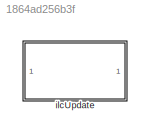
MODEL slx_1864ad256b3f
KIND library
CONFIG AbsTol = auto
CONFIG EnableMultiTasking = off
CONFIG FixedStep = auto
CONFIG MaxStep = auto
CONFIG MinStep = auto
CONFIG RelTol = 1e-3
CONFIG SampleTimeConstraint = Unconstrained
CONFIG SolverName = VariableStepAuto
CONFIG StartTime = 0.0
CONFIG StopTime = 10.0
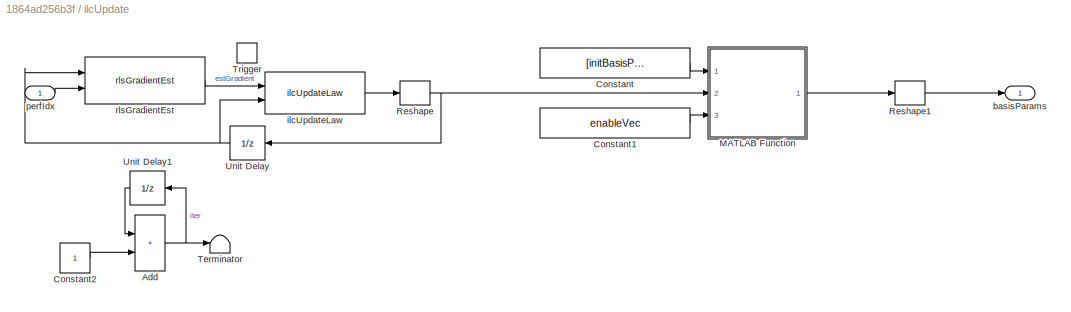
BLOCK [SubSystem] ilcUpdate
  Ports = [1, 1, 0, 1]
  RequestExecContextInheritance = off
BLOCK [Sum] ilcUpdate/Add
  IconShape = rectangular
  Ports = [2, 1]
BLOCK [Constant] ilcUpdate/Constant
  Value = [initBasisParams(:)]
BLOCK [Constant] ilcUpdate/Constant1
  Value = enableVec
BLOCK [Constant] ilcUpdate/Constant2
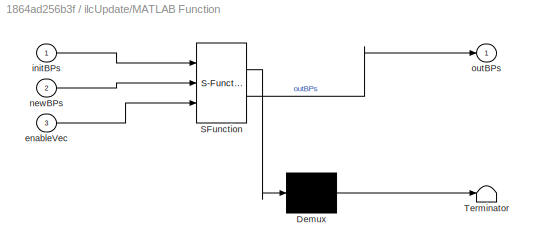
BLOCK [SubSystem] ilcUpdate/MATLAB Function
  ErrorFcn = Stateflow.Translate.translate
  PermitHierarchicalResolution = ExplicitOnly
  Ports = [3, 1]
  RequestExecContextInheritance = off
  SFBlockType = MATLAB Function
  TreatAsAtomicUnit = on
BLOCK [Demux] ilcUpdate/MATLAB Function/ Demux 
  Outputs = 1
  Ports = [1, 1]
BLOCK [S-Function] ilcUpdate/MATLAB Function/ SFunction 
  EnableBusSupport = off
  FunctionName = sf_sfun
  PortCounts = [3 2]
  Ports = [3, 2]
  SFcnIsStateOwnerBlock = off
  SFunctionDeploymentMode = off
  Tag = Stateflow S-Function 2
BLOCK [Terminator] ilcUpdate/MATLAB Function/ Terminator 
BLOCK [Inport] ilcUpdate/MATLAB Function/enableVec
  Port = 3
BLOCK [Inport] ilcUpdate/MATLAB Function/initBPs
BLOCK [Inport] ilcUpdate/MATLAB Function/newBPs
  Port = 2
BLOCK [Outport] ilcUpdate/MATLAB Function/outBPs
  VectorParamsAs1DForOutWhenUnconnected = off
BLOCK [Reshape] ilcUpdate/Reshape
  Ports = [1, 1]
BLOCK [Reshape] ilcUpdate/Reshape1
  OutputDimensionality = Column vector (2-D)
  Ports = [1, 1]
BLOCK [Terminator] ilcUpdate/Terminator
BLOCK [TriggerPort] ilcUpdate/Trigger
  PortDimensions = 1
  Ports = []
  StatesWhenEnabling = held
  VariantControl = Variant
BLOCK [UnitDelay] ilcUpdate/Unit Delay
  HasFrameUpgradeWarning = on
  InitialCondition = [initBasisParams(logical(enableVec))]
  SampleTime = -1
BLOCK [UnitDelay] ilcUpdate/Unit Delay1
  HasFrameUpgradeWarning = on
  SampleTime = -1
BLOCK [Outport] ilcUpdate/basisParams
  InitialOutput = initBasisParams
  PortDimensions = [5 1]
  VectorParamsAs1DForOutWhenUnconnected = off
BLOCK [Reference] ilcUpdate/ilcUpdateLaw  REF=ilcUpdateLaw_cl/ilcUpdateLaw
  Ports = [2, 1]
  SourceBlock = ilcUpdateLaw_cl/ilcUpdateLaw
BLOCK [Inport] ilcUpdate/perfIdx
  PortDimensions = 1
BLOCK [Reference] ilcUpdate/rlsGradientEst  REF=rlsGradientEst_cl/rlsGradientEst
  Ports = [2, 1]
  SourceBlock = rlsGradientEst_cl/rlsGradientEst
NET ilcUpdate/Add:1 -> ilcUpdate/Terminator:1, ilcUpdate/Unit Delay1:1
LINE ilcUpdate/Constant1:1 -> ilcUpdate/MATLAB Function:3
LINE ilcUpdate/Constant2:1 -> ilcUpdate/Add:2
LINE ilcUpdate/Constant:1 -> ilcUpdate/MATLAB Function:1
LINE ilcUpdate/MATLAB Function:1 -> ilcUpdate/Reshape1:1
LINE ilcUpdate/Reshape1:1 -> ilcUpdate/basisParams:1
NET ilcUpdate/Reshape:1 -> ilcUpdate/MATLAB Function:2, ilcUpdate/Unit Delay:1
LINE ilcUpdate/Unit Delay1:1 -> ilcUpdate/Add:1
NET ilcUpdate/Unit Delay:1 -> ilcUpdate/ilcUpdateLaw:2, ilcUpdate/rlsGradientEst:1
LINE ilcUpdate/ilcUpdateLaw:1 -> ilcUpdate/Reshape:1
LINE ilcUpdate/perfIdx:1 -> ilcUpdate/rlsGradientEst:2
LINE ilcUpdate/rlsGradientEst:1 -> ilcUpdate/ilcUpdateLaw:1
note: NET lines group one-source signal fan-out (src -> all destinations, sorted); 1:1 wires keep LINE
CHART ilcUpdate/MATLAB Function states=1 transitions=1
  STATE_LABEL 'eML_blk_kernel()'
  STATE_LABEL 'SCRIPT:\nfunction outBPs = fcn(initBPs,newBPs,enableVec)\n\noutBPs = initBPs;\n\nif newBPs(1) <= newBPs(2)*2\n    newBPs(2) = newBPs(1)/2-1\nend\noutBPs(logical(enableVec)) = newBPs;\n'
CHART  states=0 transitions=0
